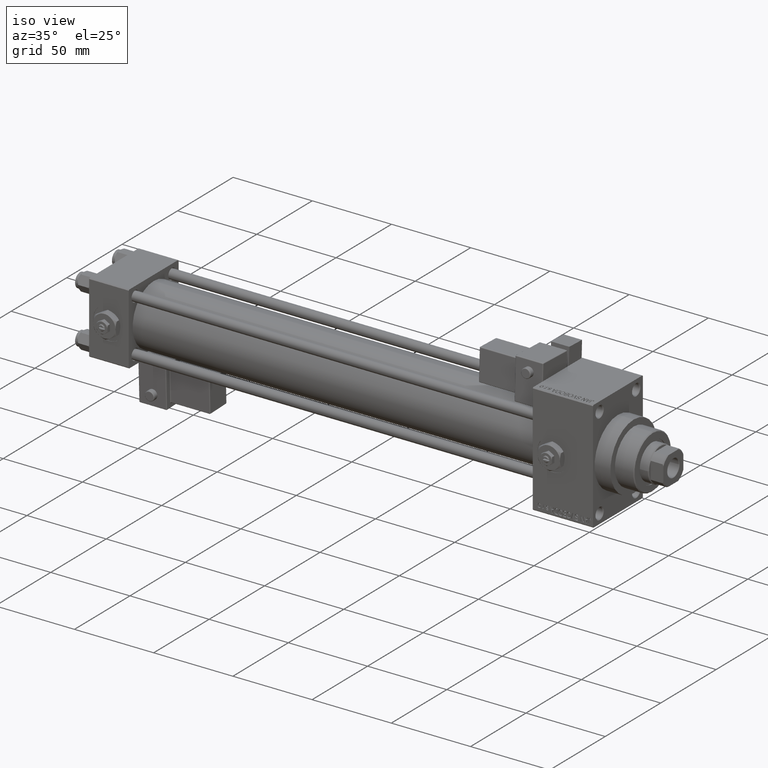
[diagram: clean part render]
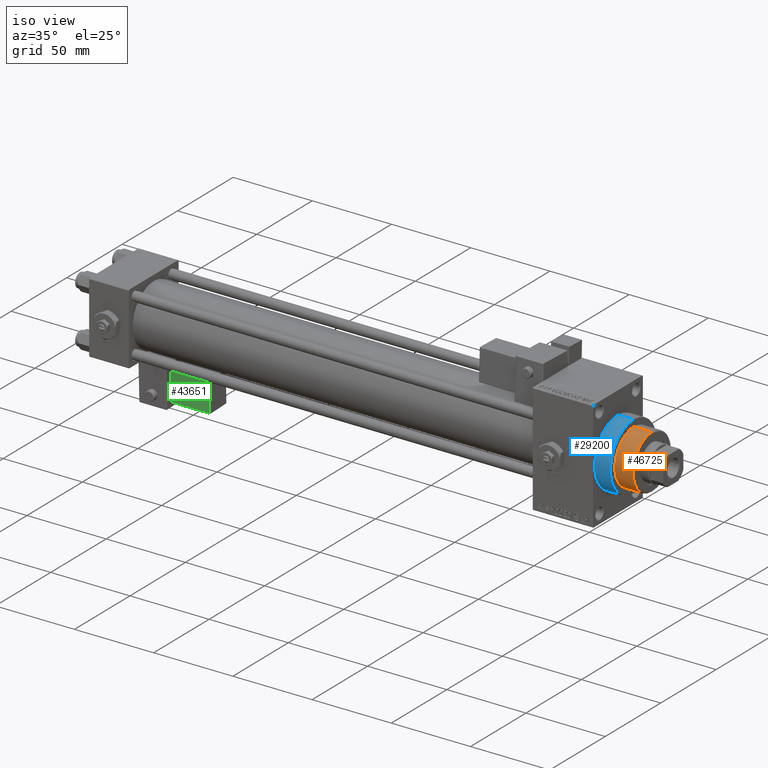
[diagram: same view with three faces highlighted in distinct colors, each labeled with its STEP entity id]
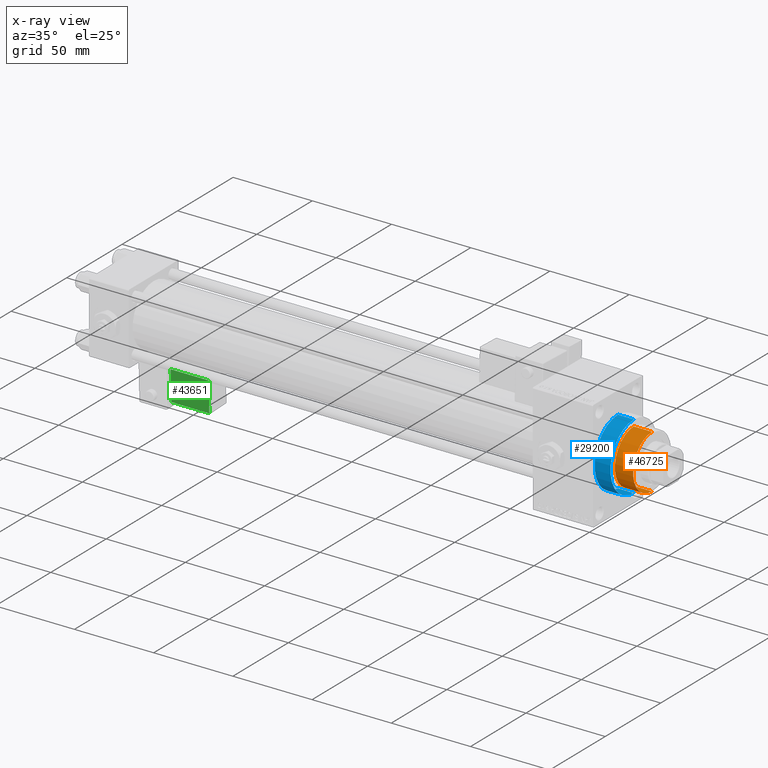
[diagram: x-ray of the same camera — body ghosted, the three highlighted faces saturated]
A machine part, iso view with three faces highlighted in distinct colors.
The next image is the same camera in x-ray (body ghosted, the three faces saturated) — at least one of them is partly hidden behind the body in this view.
Their STEP definitions:

[orange] entity #46725 — the highlighted cylindrical surface (edge-blend (fillet) strip) has radius 17 mm, axis along (-1, 0, 0).
#217 = FACE_OUTER_BOUND ( 'NONE', #12119, .T. ) ;
#692 = DIRECTION ( 'NONE',  ( -0.000000000000000000, -0.000000000000000000, -1.000000000000000000 ) ) ;
#4631 = CARTESIAN_POINT ( 'NONE',  ( 17.00000000000000000, 2.081899558550500280E-15, 55.26000000000000512 ) ) ;
#5852 = CARTESIAN_POINT ( 'NONE',  ( -17.00000000000000000, 0.000000000000000000, 55.26000000000000512 ) ) ;
#7243 = CYLINDRICAL_SURFACE ( 'NONE', #43254, 17.00000000000000000 ) ;
#7780 = DIRECTION ( 'NONE',  ( 1.000000000000000000, 0.000000000000000000, 0.000000000000000000 ) ) ;
#10255 = EDGE_CURVE ( 'NONE', #29662, #50970, #45071, .T. ) ;
#11894 = CARTESIAN_POINT ( 'NONE',  ( 0.000000000000000000, 0.000000000000000000, 55.26000000000000512 ) ) ;
#12119 = EDGE_LOOP ( 'NONE', ( #41878, #39567, #34175, #16188 ) ) ;
#12403 = LINE ( 'NONE', #4631, #32995 ) ;
#14779 = CIRCLE ( 'NONE', #43815, 17.00000000000000000 ) ;
#15273 = DIRECTION ( 'NONE',  ( -0.000000000000000000, -0.000000000000000000, -1.000000000000000000 ) ) ;
#16188 = ORIENTED_EDGE ( 'NONE', *, *, #29125, .F. ) ;
#16880 = VERTEX_POINT ( 'NONE', #27142 ) ;
#19720 = DIRECTION ( 'NONE',  ( 1.000000000000000000, 0.000000000000000000, 0.000000000000000000 ) ) ;
#19929 = DIRECTION ( 'NONE',  ( -0.000000000000000000, -0.000000000000000000, -1.000000000000000000 ) ) ;
#20421 = VECTOR ( 'NONE', #692, 1000.000000000000000 ) ;
#20503 = VERTEX_POINT ( 'NONE', #36017 ) ;
#22686 = AXIS2_PLACEMENT_3D ( 'NONE', #46757, #47259, #19720 ) ;
#25745 = CARTESIAN_POINT ( 'NONE',  ( -17.00000000000000000, 0.000000000000000000, 43.25999999999999801 ) ) ;
#27142 = CARTESIAN_POINT ( 'NONE',  ( -17.00000000000000000, 0.000000000000000000, 54.76000000000001222 ) ) ;
#29125 = EDGE_CURVE ( 'NONE', #16880, #50970, #40415, .T. ) ;
#29662 = VERTEX_POINT ( 'NONE', #34294 ) ;
#32995 = VECTOR ( 'NONE', #15273, 1000.000000000000000 ) ;
#34175 = ORIENTED_EDGE ( 'NONE', *, *, #10255, .T. ) ;
#34294 = CARTESIAN_POINT ( 'NONE',  ( 17.00000000000000000, 2.081899558550500280E-15, 43.25999999999999801 ) ) ;
#35592 = EDGE_CURVE ( 'NONE', #20503, #29662, #12403, .T. ) ;
#35788 = DIRECTION ( 'NONE',  ( -1.000000000000000000, 0.000000000000000000, 0.000000000000000000 ) ) ;
#36017 = CARTESIAN_POINT ( 'NONE',  ( 17.00000000000000000, 2.081899558550500280E-15, 54.76000000000001222 ) ) ;
#36429 = EDGE_CURVE ( 'NONE', #16880, #20503, #14779, .T. ) ;
#39567 = ORIENTED_EDGE ( 'NONE', *, *, #35592, .T. ) ;
#40415 = LINE ( 'NONE', #5852, #20421 ) ;
#41878 = ORIENTED_EDGE ( 'NONE', *, *, #36429, .T. ) ;
#43254 = AXIS2_PLACEMENT_3D ( 'NONE', #11894, #19929, #35788 ) ;
#43345 = DIRECTION ( 'NONE',  ( 0.000000000000000000, 0.000000000000000000, -1.000000000000000000 ) ) ;
#43815 = AXIS2_PLACEMENT_3D ( 'NONE', #51133, #43345, #7780 ) ;
#45071 = CIRCLE ( 'NONE', #22686, 17.00000000000000000 ) ;
#46725 = ADVANCED_FACE ( 'NONE', ( #217 ), #7243, .T. ) ;
#46757 = CARTESIAN_POINT ( 'NONE',  ( 0.000000000000000000, 0.000000000000000000, 43.25999999999999801 ) ) ;
#47259 = DIRECTION ( 'NONE',  ( 0.000000000000000000, 0.000000000000000000, 1.000000000000000000 ) ) ;
#50970 = VERTEX_POINT ( 'NONE', #25745 ) ;
#51133 = CARTESIAN_POINT ( 'NONE',  ( 0.000000000000000000, 0.000000000000000000, 54.76000000000001222 ) ) ;

[blue] entity #29200 — the highlighted cylindrical surface (partial cylindrical patch) has radius 21 mm, axis along (-1, -0, -0).
#2035 = CIRCLE ( 'NONE', #5374, 21.00000000000000000 ) ;
#2643 = CARTESIAN_POINT ( 'NONE',  ( 328.0000000000000000, 0.000000000000000000, 21.00000000000000000 ) ) ;
#3078 = CIRCLE ( 'NONE', #13816, 21.00000000000000000 ) ;
#4812 = CARTESIAN_POINT ( 'NONE',  ( 318.0000000000000000, 0.000000000000000000, 21.00000000000000000 ) ) ;
#5374 = AXIS2_PLACEMENT_3D ( 'NONE', #11626, #7490, #27479 ) ;
#6011 = VERTEX_POINT ( 'NONE', #21444 ) ;
#7490 = DIRECTION ( 'NONE',  ( 1.000000000000000000, 0.000000000000000000, 0.000000000000000000 ) ) ;
#9857 = ORIENTED_EDGE ( 'NONE', *, *, #43742, .T. ) ;
#11626 = CARTESIAN_POINT ( 'NONE',  ( 318.0000000000000000, 0.000000000000000000, 0.000000000000000000 ) ) ;
#12364 = DIRECTION ( 'NONE',  ( 0.000000000000000000, 0.000000000000000000, -1.000000000000000000 ) ) ;
#13816 = AXIS2_PLACEMENT_3D ( 'NONE', #24812, #16507, #12364 ) ;
#14142 = FACE_OUTER_BOUND ( 'NONE', #32139, .T. ) ;
#14571 = CARTESIAN_POINT ( 'NONE',  ( 328.0000000000000000, 2.571758278209441661E-15, -21.00000000000000000 ) ) ;
#14579 = LINE ( 'NONE', #2643, #32354 ) ;
#16507 = DIRECTION ( 'NONE',  ( 1.000000000000000000, 0.000000000000000000, 0.000000000000000000 ) ) ;
#17174 = VECTOR ( 'NONE', #23827, 1000.000000000000000 ) ;
#17522 = EDGE_CURVE ( 'NONE', #44316, #33208, #3078, .T. ) ;
#17850 = ORIENTED_EDGE ( 'NONE', *, *, #34352, .F. ) ;
#19342 = ORIENTED_EDGE ( 'NONE', *, *, #25602, .T. ) ;
#21444 = CARTESIAN_POINT ( 'NONE',  ( 318.0000000000000000, 2.571758278209441661E-15, -21.00000000000000000 ) ) ;
#23827 = DIRECTION ( 'NONE',  ( -1.000000000000000000, -0.000000000000000000, -0.000000000000000000 ) ) ;
#24812 = CARTESIAN_POINT ( 'NONE',  ( 328.0000000000000000, 0.000000000000000000, 0.000000000000000000 ) ) ;
#25602 = EDGE_CURVE ( 'NONE', #47127, #6011, #2035, .T. ) ;
#27019 = ORIENTED_EDGE ( 'NONE', *, *, #17522, .F. ) ;
#27479 = DIRECTION ( 'NONE',  ( 0.000000000000000000, 0.000000000000000000, -1.000000000000000000 ) ) ;
#29200 = ADVANCED_FACE ( 'NONE', ( #14142 ), #34675, .T. ) ;
#30259 = DIRECTION ( 'NONE',  ( 0.000000000000000000, 0.000000000000000000, 1.000000000000000000 ) ) ;
#30438 = DIRECTION ( 'NONE',  ( -1.000000000000000000, -0.000000000000000000, -0.000000000000000000 ) ) ;
#32139 = EDGE_LOOP ( 'NONE', ( #17850, #27019, #9857, #19342 ) ) ;
#32354 = VECTOR ( 'NONE', #30438, 1000.000000000000000 ) ;
#33208 = VERTEX_POINT ( 'NONE', #40163 ) ;
#34352 = EDGE_CURVE ( 'NONE', #33208, #6011, #43573, .T. ) ;
#34675 = CYLINDRICAL_SURFACE ( 'NONE', #37855, 21.00000000000000000 ) ;
#37855 = AXIS2_PLACEMENT_3D ( 'NONE', #46362, #38059, #30259 ) ;
#38059 = DIRECTION ( 'NONE',  ( -1.000000000000000000, -0.000000000000000000, -0.000000000000000000 ) ) ;
#38626 = CARTESIAN_POINT ( 'NONE',  ( 328.0000000000000000, 0.000000000000000000, 21.00000000000000000 ) ) ;
#40163 = CARTESIAN_POINT ( 'NONE',  ( 328.0000000000000000, 2.571758278209441661E-15, -21.00000000000000000 ) ) ;
#43573 = LINE ( 'NONE', #14571, #17174 ) ;
#43742 = EDGE_CURVE ( 'NONE', #44316, #47127, #14579, .T. ) ;
#44316 = VERTEX_POINT ( 'NONE', #38626 ) ;
#46362 = CARTESIAN_POINT ( 'NONE',  ( 328.0000000000000000, 0.000000000000000000, 0.000000000000000000 ) ) ;
#47127 = VERTEX_POINT ( 'NONE', #4812 ) ;

[green] entity #43651 — the highlighted planar face has unit normal (0, 0.9994, 0.0353).
#2180 = DIRECTION ( 'NONE',  ( 1.000000000000000000, -0.000000000000000000, 1.334402673828313339E-16 ) ) ;
#2930 = VERTEX_POINT ( 'NONE', #45262 ) ;
#4747 = DIRECTION ( 'NONE',  ( -0.000000000000000000, 1.000000000000000000, 0.000000000000000000 ) ) ;
#5253 = DIRECTION ( 'NONE',  ( 0.000000000000000000, -0.000000000000000000, 1.000000000000000000 ) ) ;
#9142 = FACE_OUTER_BOUND ( 'NONE', #41859, .T. ) ;
#9315 = EDGE_CURVE ( 'NONE', #23909, #2930, #45990, .T. ) ;
#9500 = VERTEX_POINT ( 'NONE', #47250 ) ;
#9970 = LINE ( 'NONE', #25802, #34376 ) ;
#10293 = DIRECTION ( 'NONE',  ( -1.734723475976807341E-16, -0.000000000000000000, 1.000000000000000000 ) ) ;
#11180 = EDGE_CURVE ( 'NONE', #22809, #9500, #9970, .T. ) ;
#12643 = DIRECTION ( 'NONE',  ( 1.334402673828313339E-16, 0.000000000000000000, -1.000000000000000000 ) ) ;
#14027 = CARTESIAN_POINT ( 'NONE',  ( 33.75000000000000000, -30.25000000000000000, 21.50000000000000000 ) ) ;
#16267 = EDGE_CURVE ( 'NONE', #2930, #22809, #47468, .T. ) ;
#16792 = CARTESIAN_POINT ( 'NONE',  ( 9.250000000000005329, -30.25000000000000000, 2.000000000000001776 ) ) ;
#17418 = ORIENTED_EDGE ( 'NONE', *, *, #11180, .T. ) ;
#19603 = VECTOR ( 'NONE', #12643, 1000.000000000000000 ) ;
#21540 = AXIS2_PLACEMENT_3D ( 'NONE', #45239, #4747, #5253 ) ;
#22809 = VERTEX_POINT ( 'NONE', #32016 ) ;
#23264 = VECTOR ( 'NONE', #10293, 1000.000000000000000 ) ;
#23909 = VERTEX_POINT ( 'NONE', #39379 ) ;
#25802 = CARTESIAN_POINT ( 'NONE',  ( 33.75000000000000000, -30.25000000000000000, 2.500000000000005773 ) ) ;
#30023 = CARTESIAN_POINT ( 'NONE',  ( 33.24999999999999289, -30.25000000000000000, 22.00000000000000355 ) ) ;
#32016 = CARTESIAN_POINT ( 'NONE',  ( 9.250000000000005329, -30.25000000000000000, 2.500000000000003109 ) ) ;
#34376 = VECTOR ( 'NONE', #2180, 1000.000000000000000 ) ;
#37442 = PLANE ( 'NONE',  #21540 ) ;
#37593 = VECTOR ( 'NONE', #50383, 1000.000000000000000 ) ;
#38078 = LINE ( 'NONE', #30023, #23264 ) ;
#39379 = CARTESIAN_POINT ( 'NONE',  ( 33.24999999999999289, -30.25000000000000000, 21.50000000000000000 ) ) ;
#41859 = EDGE_LOOP ( 'NONE', ( #48569, #17418, #43325, #44893 ) ) ;
#43325 = ORIENTED_EDGE ( 'NONE', *, *, #49438, .T. ) ;
#43651 = ADVANCED_FACE ( 'NONE', ( #9142 ), #37442, .F. ) ;
#44893 = ORIENTED_EDGE ( 'NONE', *, *, #9315, .T. ) ;
#45239 = CARTESIAN_POINT ( 'NONE',  ( 33.75000000000000000, -30.25000000000000000, 22.00000000000000355 ) ) ;
#45262 = CARTESIAN_POINT ( 'NONE',  ( 9.250000000000001776, -30.25000000000000000, 21.50000000000000000 ) ) ;
#45990 = LINE ( 'NONE', #14027, #37593 ) ;
#47250 = CARTESIAN_POINT ( 'NONE',  ( 33.24999999999999289, -30.25000000000000000, 2.500000000000006661 ) ) ;
#47468 = LINE ( 'NONE', #16792, #19603 ) ;
#48569 = ORIENTED_EDGE ( 'NONE', *, *, #16267, .T. ) ;
#49438 = EDGE_CURVE ( 'NONE', #9500, #23909, #38078, .T. ) ;
#50383 = DIRECTION ( 'NONE',  ( -1.000000000000000000, 0.000000000000000000, -1.334402673828313339E-16 ) ) ;